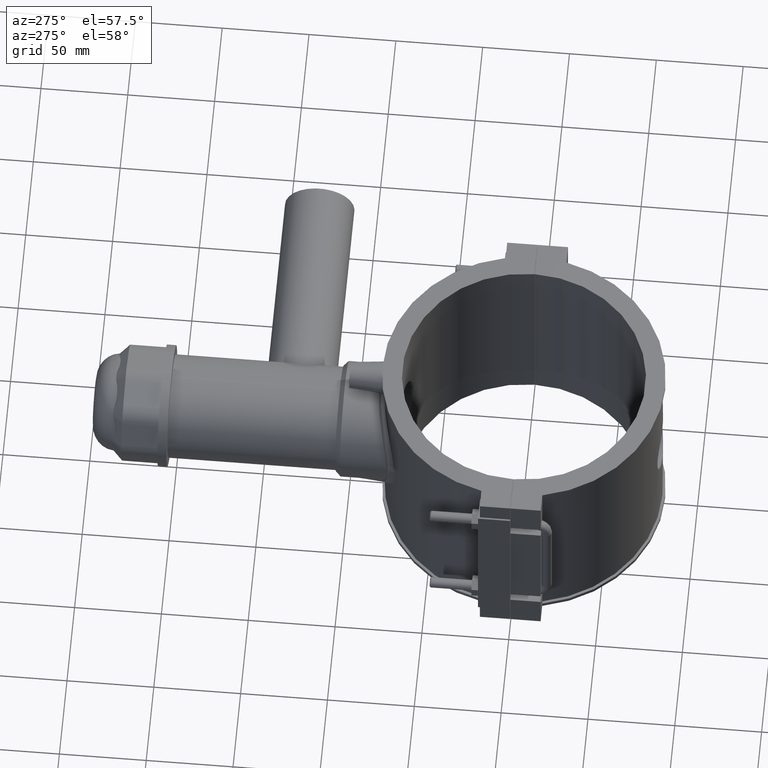
[diagram: clean part render]
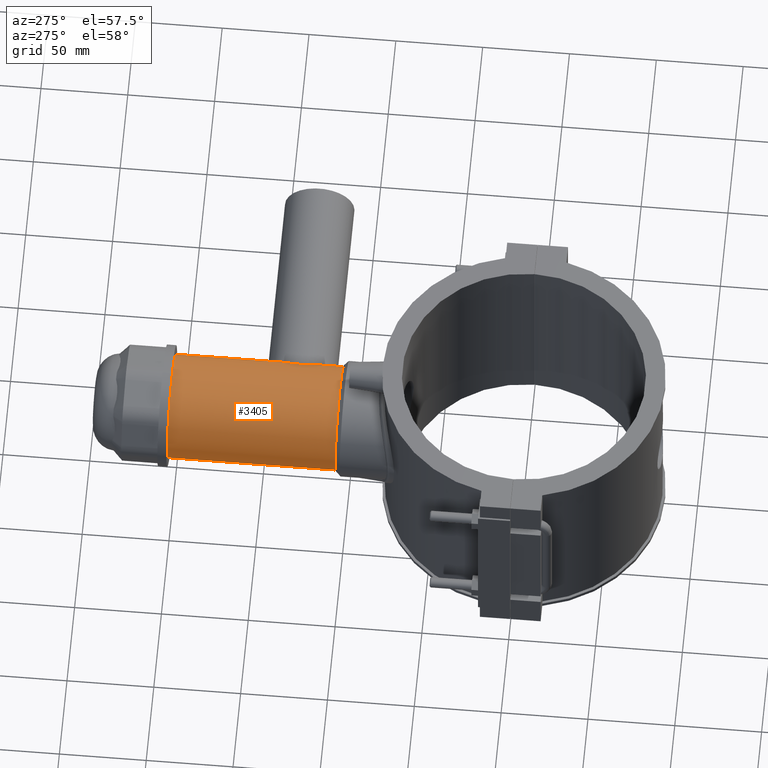
[diagram: same view with one face highlighted and labeled with its STEP entity id]
A machine part, auxiliary view. The second image highlights one B-rep face of the part: STEP entity #3405.
In plain terms, the highlighted cylindrical surface (bore or boss wall) has radius 29.75 mm, axis along (0, 1, 0).
Its self-contained STEP definition (entity closure, byte-faithful):
#640=FACE_BOUND('',#1107,.T.);
#641=FACE_BOUND('',#1108,.T.);
#690=B_SPLINE_CURVE_WITH_KNOTS('',3,(#4944,#4945,#4946,#4947,#4948,#4949,
#4950,#4951,#4952,#4953,#4954,#4955,#4956,#4957,#4958,#4959,#4960,#4961,
#4962,#4963,#4964,#4965,#4966,#4967,#4968,#4969,#4970,#4971,#4972,#4973,
#4974,#4975,#4976,#4977,#4978,#4979,#4980,#4981,#4982,#4983,#4984,#4985,
#4986,#4987,#4988,#4989,#4990,#4991,#4992,#4993,#4994,#4995,#4996,#4997,
#4998,#4999,#5000,#5001,#5002,#5003,#5004,#5005,#5006,#5007,#5008,#5009),
 .UNSPECIFIED.,.T.,.F.,(4,2,2,2,2,2,2,2,2,2,2,2,2,2,2,2,2,2,2,2,2,2,2,2,
2,2,2,2,2,2,2,2,4),(0.,0.394986960694307,0.789973921388614,1.18496088208292,
1.57994784277723,1.97039411620394,2.36084038963065,2.75128666305737,3.14173293648408,
3.5321792099108,3.92262548333751,4.31307175676422,4.70351803019094,5.09850499088524,
5.49349195157955,5.88847891227386,6.28346587296816,6.67845283366247,7.07343979435678,
7.46842675505108,7.86341371574539,8.2538599891721,8.64430626259882,9.03475253602553,
9.42519880945224,9.81564508287896,10.2060913563057,10.5965376297324,10.9869839031591,
11.3819708638534,11.7769578245477,12.171944785242,12.5669317459363),
 .UNSPECIFIED.);
#786=CYLINDRICAL_SURFACE('',#3638,29.75);
#889=FACE_OUTER_BOUND('',#1106,.T.);
#1106=EDGE_LOOP('',(#2513));
#1107=EDGE_LOOP('',(#2514));
#1108=EDGE_LOOP('',(#2515));
#1326=CIRCLE('',#3620,29.75);
#1333=CIRCLE('',#3639,29.75);
#1414=VERTEX_POINT('',#4943);
#1490=VERTEX_POINT('',#5676);
#1500=VERTEX_POINT('',#5716);
#1739=EDGE_CURVE('',#1414,#1414,#690,.T.);
#1863=EDGE_CURVE('',#1490,#1490,#1326,.T.);
#1881=EDGE_CURVE('',#1500,#1500,#1333,.T.);
#2513=ORIENTED_EDGE('',*,*,#1863,.T.);
#2514=ORIENTED_EDGE('',*,*,#1739,.T.);
#2515=ORIENTED_EDGE('',*,*,#1881,.F.);
#3405=ADVANCED_FACE('',(#889,#640,#641),#786,.T.);
#3620=AXIS2_PLACEMENT_3D('',#5677,#4049,#4050);
#3638=AXIS2_PLACEMENT_3D('',#5715,#4096,#4097);
#3639=AXIS2_PLACEMENT_3D('',#5717,#4098,#4099);
#4049=DIRECTION('center_axis',(0.,1.,3.06161699786838E-16));
#4050=DIRECTION('ref_axis',(1.,0.,0.));
#4096=DIRECTION('center_axis',(0.,1.,3.06161699786838E-16));
#4097=DIRECTION('ref_axis',(0.,0.,1.));
#4098=DIRECTION('center_axis',(0.,1.,3.06161699786838E-16));
#4099=DIRECTION('ref_axis',(1.,0.,0.));
#4943=CARTESIAN_POINT('',(22.024134489237,130.,-20.));
#4944=CARTESIAN_POINT('Ctrl Pts',(22.024134489237,130.,-20.));
#4945=CARTESIAN_POINT('Ctrl Pts',(22.024134489237,128.683376797686,-20.));
#4946=CARTESIAN_POINT('Ctrl Pts',(22.1458638898056,127.347011941061,-19.8682433821713));
#4947=CARTESIAN_POINT('Ctrl Pts',(22.6097169299075,124.72758494554,-19.3387456056371));
#4948=CARTESIAN_POINT('Ctrl Pts',(22.9503482168855,123.444193930298,-18.941325212873));
#4949=CARTESIAN_POINT('Ctrl Pts',(23.7624102651509,121.004863815371,-17.9120083541825));
#4950=CARTESIAN_POINT('Ctrl Pts',(24.2332788504253,119.84632838474,-17.2792349902133));
#4951=CARTESIAN_POINT('Ctrl Pts',(25.2042840684037,117.707678045066,-15.829334484272));
#4952=CARTESIAN_POINT('Ctrl Pts',(25.7037943645156,116.727544385723,-15.0118156331846));
#4953=CARTESIAN_POINT('Ctrl Pts',(26.638200975577,114.998182025824,-13.2824532732858));
#4954=CARTESIAN_POINT('Ctrl Pts',(27.1093573822173,114.182532961344,-12.3077158978754));
#4955=CARTESIAN_POINT('Ctrl Pts',(27.9821562463372,112.729329075253,-10.1683853235285));
#4956=CARTESIAN_POINT('Ctrl Pts',(28.3833123255869,112.09168789201,-9.00365238769295));
#4957=CARTESIAN_POINT('Ctrl Pts',(29.0478491055347,111.056062470721,-6.54985836301734));
#4958=CARTESIAN_POINT('Ctrl Pts',(29.3115417283838,110.657226662666,-5.25817397454277));
#4959=CARTESIAN_POINT('Ctrl Pts',(29.6627171803971,110.129086774605,-2.6340238283563));
#4960=CARTESIAN_POINT('Ctrl Pts',(29.75,110.,-1.30148757808905));
#4961=CARTESIAN_POINT('Ctrl Pts',(29.75,110.,1.30148757808904));
#4962=CARTESIAN_POINT('Ctrl Pts',(29.6627171803971,110.129086774605,2.6340238283563));
#4963=CARTESIAN_POINT('Ctrl Pts',(29.3115417283838,110.657226662666,5.25817397454277));
#4964=CARTESIAN_POINT('Ctrl Pts',(29.0478491055347,111.056062470721,6.54985836301734));
#4965=CARTESIAN_POINT('Ctrl Pts',(28.3833123255869,112.09168789201,9.00365238769295));
#4966=CARTESIAN_POINT('Ctrl Pts',(27.9821562463372,112.729329075253,10.1683853235285));
#4967=CARTESIAN_POINT('Ctrl Pts',(27.1093573822173,114.182532961344,12.3077158978754));
#4968=CARTESIAN_POINT('Ctrl Pts',(26.638200975577,114.998182025824,13.2824532732858));
#4969=CARTESIAN_POINT('Ctrl Pts',(25.7037943645156,116.727544385723,15.0118156331846));
#4970=CARTESIAN_POINT('Ctrl Pts',(25.2042840684037,117.707678045066,15.829334484272));
#4971=CARTESIAN_POINT('Ctrl Pts',(24.2332788504253,119.846328384741,17.2792349902133));
#4972=CARTESIAN_POINT('Ctrl Pts',(23.762410265151,121.004863815371,17.9120083541825));
#4973=CARTESIAN_POINT('Ctrl Pts',(22.9503482168855,123.444193930298,18.941325212873));
#4974=CARTESIAN_POINT('Ctrl Pts',(22.6097169299076,124.72758494554,19.3387456056371));
#4975=CARTESIAN_POINT('Ctrl Pts',(22.1458638898057,127.347011941061,19.8682433821713));
#4976=CARTESIAN_POINT('Ctrl Pts',(22.0241344892371,128.683376797686,20.));
#4977=CARTESIAN_POINT('Ctrl Pts',(22.0241344892371,131.316623202314,20.));
#4978=CARTESIAN_POINT('Ctrl Pts',(22.1458638898057,132.652988058939,19.8682433821713));
#4979=CARTESIAN_POINT('Ctrl Pts',(22.6097169299076,135.27241505446,19.3387456056371));
#4980=CARTESIAN_POINT('Ctrl Pts',(22.9503482168855,136.555806069702,18.941325212873));
#4981=CARTESIAN_POINT('Ctrl Pts',(23.762410265151,138.995136184629,17.9120083541825));
#4982=CARTESIAN_POINT('Ctrl Pts',(24.2332788504254,140.15367161526,17.2792349902133));
#4983=CARTESIAN_POINT('Ctrl Pts',(25.2042840684037,142.292321954934,15.829334484272));
#4984=CARTESIAN_POINT('Ctrl Pts',(25.7037943645157,143.272455614277,15.0118156331846));
#4985=CARTESIAN_POINT('Ctrl Pts',(26.6382009755771,145.001817974176,13.2824532732858));
#4986=CARTESIAN_POINT('Ctrl Pts',(27.1093573822173,145.817467038656,12.3077158978754));
#4987=CARTESIAN_POINT('Ctrl Pts',(27.9821562463372,147.270670924747,10.1683853235286));
#4988=CARTESIAN_POINT('Ctrl Pts',(28.3833123255869,147.90831210799,9.00365238769295));
#4989=CARTESIAN_POINT('Ctrl Pts',(29.0478491055347,148.943937529279,6.54985836301735));
#4990=CARTESIAN_POINT('Ctrl Pts',(29.3115417283838,149.342773337334,5.25817397454278));
#4991=CARTESIAN_POINT('Ctrl Pts',(29.6627171803971,149.870913225395,2.63402382835631));
#4992=CARTESIAN_POINT('Ctrl Pts',(29.75,150.,1.30148757808905));
#4993=CARTESIAN_POINT('Ctrl Pts',(29.75,150.,-1.30148757808904));
#4994=CARTESIAN_POINT('Ctrl Pts',(29.6627171803971,149.870913225395,-2.6340238283563));
#4995=CARTESIAN_POINT('Ctrl Pts',(29.3115417283838,149.342773337334,-5.25817397454277));
#4996=CARTESIAN_POINT('Ctrl Pts',(29.0478491055347,148.943937529279,-6.54985836301734));
#4997=CARTESIAN_POINT('Ctrl Pts',(28.3833123255869,147.90831210799,-9.00365238769294));
#4998=CARTESIAN_POINT('Ctrl Pts',(27.9821562463372,147.270670924747,-10.1683853235285));
#4999=CARTESIAN_POINT('Ctrl Pts',(27.1093573822173,145.817467038656,-12.3077158978754));
#5000=CARTESIAN_POINT('Ctrl Pts',(26.638200975577,145.001817974176,-13.2824532732858));
#5001=CARTESIAN_POINT('Ctrl Pts',(25.7037943645156,143.272455614277,-15.0118156331846));
#5002=CARTESIAN_POINT('Ctrl Pts',(25.2042840684037,142.292321954934,-15.829334484272));
#5003=CARTESIAN_POINT('Ctrl Pts',(24.2332788504253,140.153671615259,-17.2792349902133));
#5004=CARTESIAN_POINT('Ctrl Pts',(23.7624102651509,138.995136184629,-17.9120083541825));
#5005=CARTESIAN_POINT('Ctrl Pts',(22.9503482168855,136.555806069702,-18.941325212873));
#5006=CARTESIAN_POINT('Ctrl Pts',(22.6097169299075,135.27241505446,-19.3387456056371));
#5007=CARTESIAN_POINT('Ctrl Pts',(22.1458638898056,132.652988058939,-19.8682433821713));
#5008=CARTESIAN_POINT('Ctrl Pts',(22.024134489237,131.316623202314,-20.));
#5009=CARTESIAN_POINT('Ctrl Pts',(22.024134489237,130.,-20.));
#5676=CARTESIAN_POINT('',(0.,106.,29.75));
#5677=CARTESIAN_POINT('Origin',(0.,106.,1.10218211923262E-14));
#5715=CARTESIAN_POINT('Origin',(0.,154.375,2.58323934195145E-14));
#5716=CARTESIAN_POINT('',(0.,202.75,29.7500000000001));
#5717=CARTESIAN_POINT('Origin',(0.,202.75,4.06429656467028E-14));